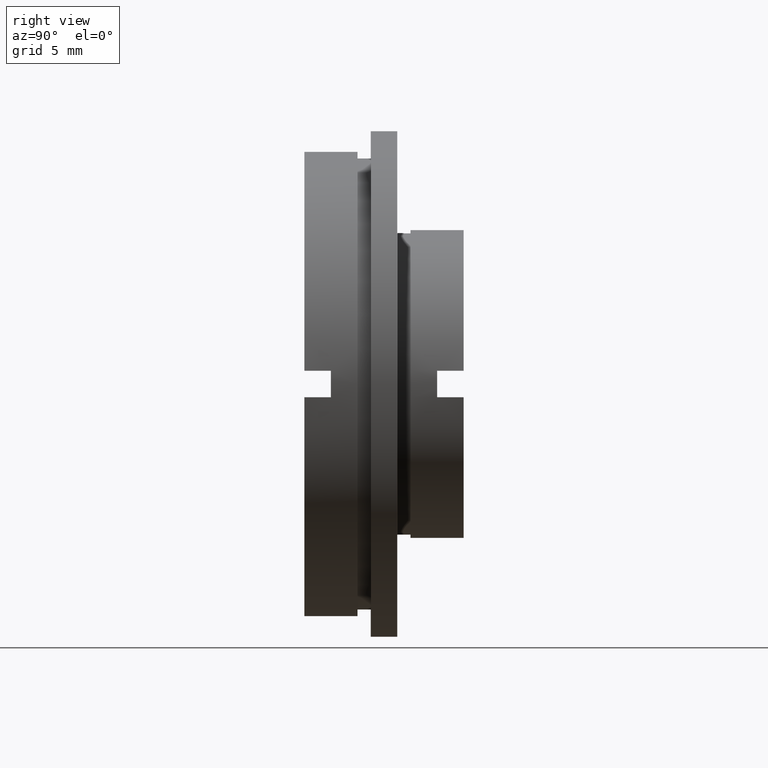
[diagram: clean part render]
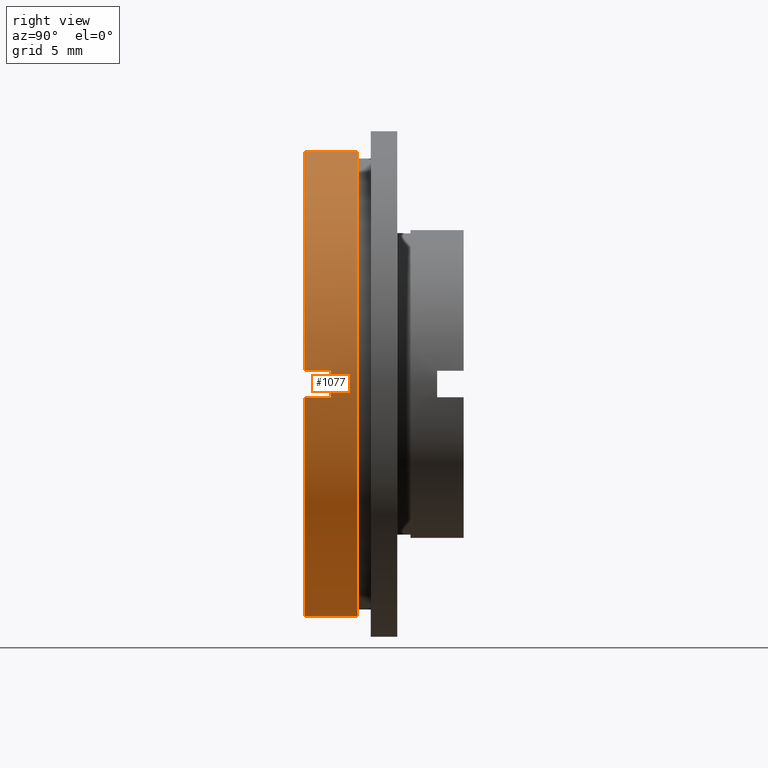
[diagram: same view with one face highlighted and labeled with its STEP entity id]
A machine part, right view. The second image highlights one B-rep face of the part: STEP entity #1077.
In plain terms, the highlighted cylindrical surface (partial cylindrical patch) has radius 17.5 mm, axis along (-0, 1, -0).
Its self-contained STEP definition (entity closure, byte-faithful):
#9 = DIRECTION ( 'NONE',  ( -0.0000000000000000000, 1.000000000000000000, -0.0000000000000000000 ) ) ;
#17 = VERTEX_POINT ( 'NONE', #163 ) ;
#30 = CARTESIAN_POINT ( 'NONE',  ( 2.143131898507867900E-015, 4.000000000000000000, -17.49999999999999600 ) ) ;
#33 = CIRCLE ( 'NONE', #776, 17.49999999999999600 ) ;
#58 = VERTEX_POINT ( 'NONE', #250 ) ;
#68 = ORIENTED_EDGE ( 'NONE', *, *, #887, .F. ) ;
#93 = CARTESIAN_POINT ( 'NONE',  ( 17.47140520965614400, 0.0000000000000000000, 1.000000000000000000 ) ) ;
#140 = DIRECTION ( 'NONE',  ( 0.0000000000000000000, 0.0000000000000000000, 1.000000000000000000 ) ) ;
#143 = AXIS2_PLACEMENT_3D ( 'NONE', #466, #471, #457 ) ;
#145 = CARTESIAN_POINT ( 'NONE',  ( 0.0000000000000000000, 0.0000000000000000000, 0.0000000000000000000 ) ) ;
#157 = VERTEX_POINT ( 'NONE', #159 ) ;
#159 = CARTESIAN_POINT ( 'NONE',  ( 17.47140520965614400, 0.0000000000000000000, -1.000000000000000000 ) ) ;
#160 = DIRECTION ( 'NONE',  ( -0.0000000000000000000, 1.000000000000000000, -0.0000000000000000000 ) ) ;
#163 = CARTESIAN_POINT ( 'NONE',  ( 17.47140520965614700, 2.000000000000000000, -0.9999999999999995600 ) ) ;
#164 = CARTESIAN_POINT ( 'NONE',  ( 2.143131898507867900E-015, 22.67749945107591400, -17.49999999999999600 ) ) ;
#168 = DIRECTION ( 'NONE',  ( -0.0000000000000000000, 1.000000000000000000, -0.0000000000000000000 ) ) ;
#193 = VECTOR ( 'NONE', #205, 1000.000000000000000 ) ;
#205 = DIRECTION ( 'NONE',  ( -0.0000000000000000000, 1.000000000000000000, -0.0000000000000000000 ) ) ;
#209 = AXIS2_PLACEMENT_3D ( 'NONE', #419, #9, #535 ) ;
#226 = VECTOR ( 'NONE', #1014, 1000.000000000000000 ) ;
#238 = ORIENTED_EDGE ( 'NONE', *, *, #661, .F. ) ;
#250 = CARTESIAN_POINT ( 'NONE',  ( 0.0000000000000000000, 4.000000000000000000, 17.49999999999999600 ) ) ;
#258 = DIRECTION ( 'NONE',  ( -0.0000000000000000000, -1.000000000000000000, -0.0000000000000000000 ) ) ;
#288 = EDGE_CURVE ( 'NONE', #58, #1119, #828, .T. ) ;
#313 = CARTESIAN_POINT ( 'NONE',  ( 0.0000000000000000000, 1.999999999999998200, 0.0000000000000000000 ) ) ;
#337 = DIRECTION ( 'NONE',  ( -0.0000000000000000000, 1.000000000000000000, -0.0000000000000000000 ) ) ;
#363 = CARTESIAN_POINT ( 'NONE',  ( 2.143131898507867900E-015, 0.0000000000000000000, -17.49999999999999600 ) ) ;
#400 = AXIS2_PLACEMENT_3D ( 'NONE', #313, #258, #581 ) ;
#418 = CARTESIAN_POINT ( 'NONE',  ( 17.47140520965614400, 22.67749945107591400, 1.000000000000003800 ) ) ;
#419 = CARTESIAN_POINT ( 'NONE',  ( 0.0000000000000000000, 22.67749945107591400, 0.0000000000000000000 ) ) ;
#440 = AXIS2_PLACEMENT_3D ( 'NONE', #1248, #168, #487 ) ;
#441 = DIRECTION ( 'NONE',  ( 0.0000000000000000000, -1.000000000000000000, 0.0000000000000000000 ) ) ;
#457 = DIRECTION ( 'NONE',  ( 0.0000000000000000000, 0.0000000000000000000, 1.000000000000000000 ) ) ;
#461 = LINE ( 'NONE', #839, #547 ) ;
#466 = CARTESIAN_POINT ( 'NONE',  ( 0.0000000000000000000, 0.0000000000000000000, 0.0000000000000000000 ) ) ;
#471 = DIRECTION ( 'NONE',  ( -0.0000000000000000000, 1.000000000000000000, -0.0000000000000000000 ) ) ;
#473 = EDGE_CURVE ( 'NONE', #1123, #58, #1330, .T. ) ;
#487 = DIRECTION ( 'NONE',  ( 0.0000000000000000000, 0.0000000000000000000, 1.000000000000000000 ) ) ;
#535 = DIRECTION ( 'NONE',  ( 0.0000000000000000000, 0.0000000000000000000, 1.000000000000000000 ) ) ;
#547 = VECTOR ( 'NONE', #337, 1000.000000000000000 ) ;
#574 = CARTESIAN_POINT ( 'NONE',  ( 0.0000000000000000000, 22.67749945107591400, 17.49999999999999600 ) ) ;
#581 = DIRECTION ( 'NONE',  ( 3.730349362740526000E-014, 0.0000000000000000000, 1.000000000000000000 ) ) ;
#661 = EDGE_CURVE ( 'NONE', #157, #17, #461, .T. ) ;
#666 = EDGE_LOOP ( 'NONE', ( #1095, #1175, #1189, #1245, #849, #68, #854, #238 ) ) ;
#723 = CIRCLE ( 'NONE', #143, 17.49999999999999600 ) ;
#733 = VERTEX_POINT ( 'NONE', #363 ) ;
#763 = VERTEX_POINT ( 'NONE', #1038 ) ;
#776 = AXIS2_PLACEMENT_3D ( 'NONE', #145, #160, #140 ) ;
#777 = VECTOR ( 'NONE', #441, 1000.000000000000000 ) ;
#792 = LINE ( 'NONE', #418, #777 ) ;
#828 = CIRCLE ( 'NONE', #440, 17.49999999999999600 ) ;
#839 = CARTESIAN_POINT ( 'NONE',  ( 17.47140520965614400, 22.67749945107591400, -0.9999999999999943400 ) ) ;
#849 = ORIENTED_EDGE ( 'NONE', *, *, #1017, .T. ) ;
#854 = ORIENTED_EDGE ( 'NONE', *, *, #949, .F. ) ;
#872 = EDGE_CURVE ( 'NONE', #157, #733, #723, .T. ) ;
#887 = EDGE_CURVE ( 'NONE', #763, #1232, #792, .T. ) ;
#949 = EDGE_CURVE ( 'NONE', #17, #763, #991, .T. ) ;
#991 = CIRCLE ( 'NONE', #400, 17.49999999999999600 ) ;
#1014 = DIRECTION ( 'NONE',  ( -0.0000000000000000000, 1.000000000000000000, -0.0000000000000000000 ) ) ;
#1017 = EDGE_CURVE ( 'NONE', #1123, #1232, #33, .T. ) ;
#1024 = EDGE_CURVE ( 'NONE', #733, #1119, #1198, .T. ) ;
#1038 = CARTESIAN_POINT ( 'NONE',  ( 17.47140520965614400, 1.999999999999998200, 1.000000000000000200 ) ) ;
#1077 = ADVANCED_FACE ( 'NONE', ( #1268 ), #1112, .T. ) ;
#1095 = ORIENTED_EDGE ( 'NONE', *, *, #872, .T. ) ;
#1112 = CYLINDRICAL_SURFACE ( 'NONE', #209, 17.49999999999999600 ) ;
#1119 = VERTEX_POINT ( 'NONE', #30 ) ;
#1123 = VERTEX_POINT ( 'NONE', #1235 ) ;
#1175 = ORIENTED_EDGE ( 'NONE', *, *, #1024, .T. ) ;
#1189 = ORIENTED_EDGE ( 'NONE', *, *, #288, .F. ) ;
#1198 = LINE ( 'NONE', #164, #193 ) ;
#1232 = VERTEX_POINT ( 'NONE', #93 ) ;
#1235 = CARTESIAN_POINT ( 'NONE',  ( 0.0000000000000000000, 0.0000000000000000000, 17.49999999999999600 ) ) ;
#1245 = ORIENTED_EDGE ( 'NONE', *, *, #473, .F. ) ;
#1248 = CARTESIAN_POINT ( 'NONE',  ( 0.0000000000000000000, 4.000000000000000000, 0.0000000000000000000 ) ) ;
#1268 = FACE_OUTER_BOUND ( 'NONE', #666, .T. ) ;
#1330 = LINE ( 'NONE', #574, #226 ) ;